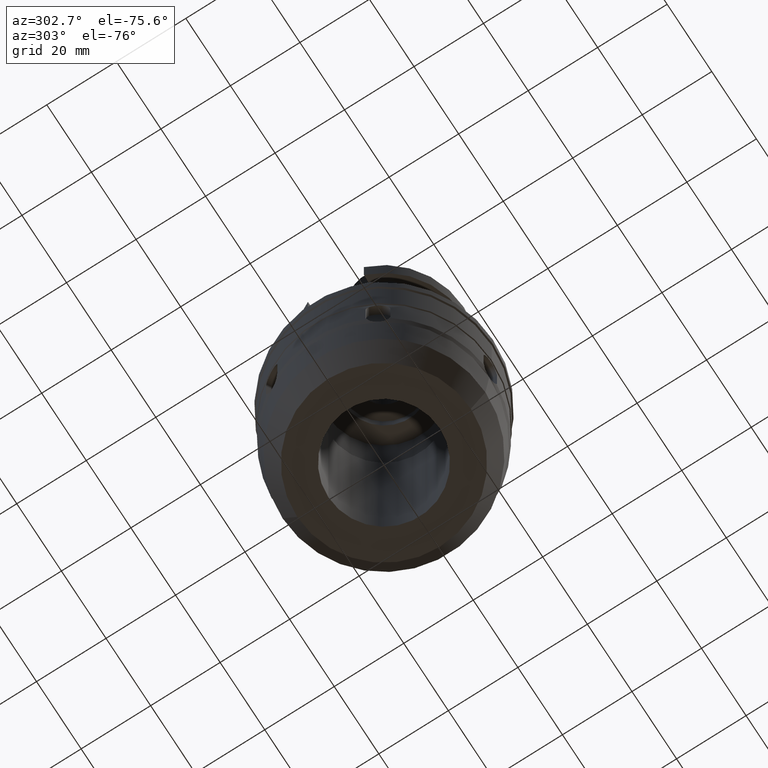
[diagram: clean part render]
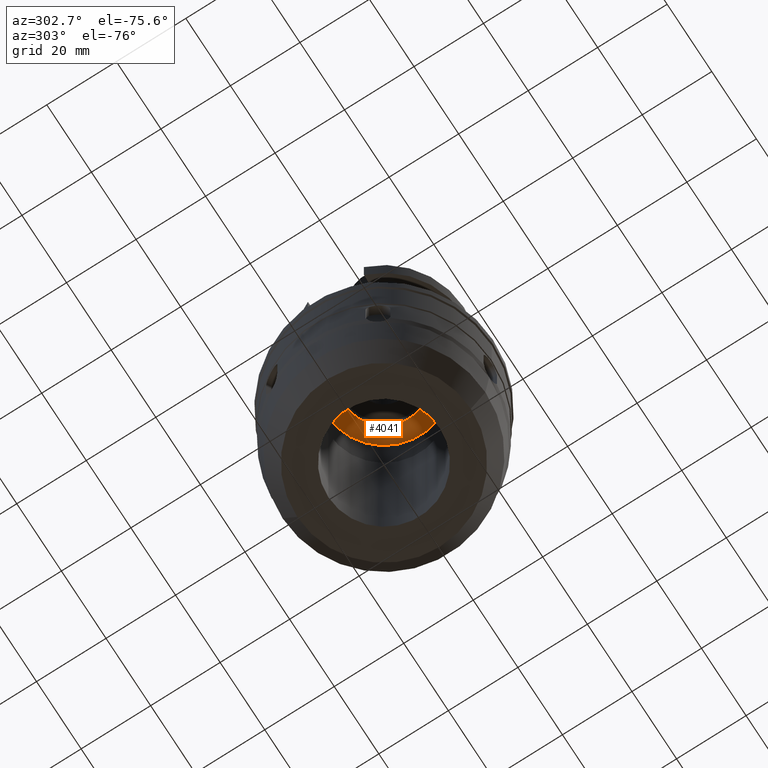
[diagram: same view with one face highlighted and labeled with its STEP entity id]
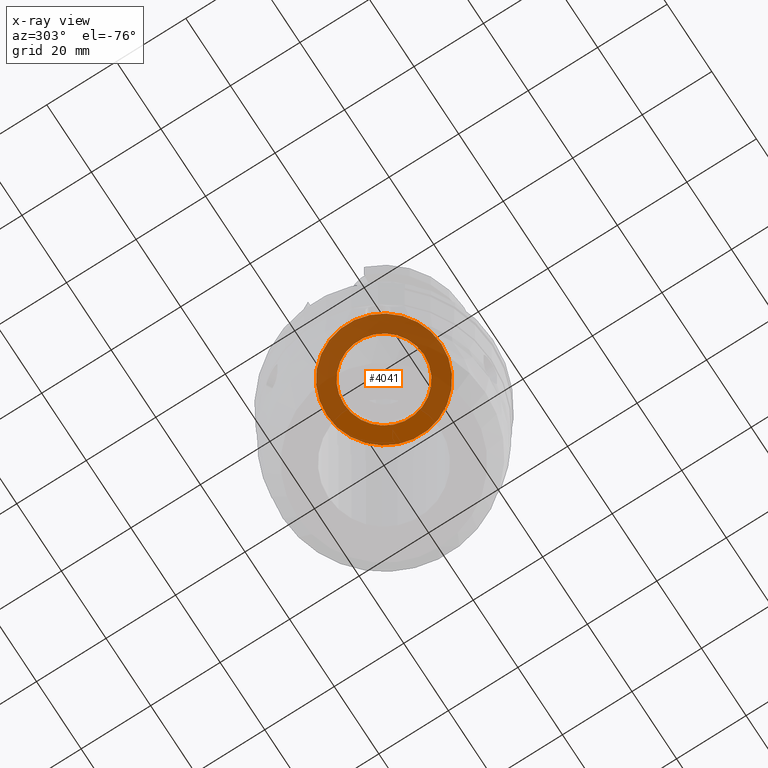
[diagram: x-ray of the same camera — body ghosted, the highlighted face saturated]
A machine part, auxiliary view. The second image highlights one B-rep face of the part: STEP entity #4041.
The next image is the same camera in x-ray: the body ghosted, the highlighted face saturated — about 72% of this face is hidden behind the body in this view.
In plain terms, the highlighted planar face has unit normal (0, 0, -1).
Its self-contained STEP definition (entity closure, byte-faithful):
#2003=CARTESIAN_POINT('',(0.E0,1.911306259429E-14,-2.4E1));
#2004=DIRECTION('',(0.E0,0.E0,1.E0));
#2005=DIRECTION('',(0.E0,-1.E0,0.E0));
#2006=AXIS2_PLACEMENT_3D('',#2003,#2004,#2005);
#2011=CARTESIAN_POINT('',(0.E0,1.911306259429E-14,-2.4E1));
#2012=DIRECTION('',(0.E0,0.E0,1.E0));
#2013=DIRECTION('',(0.E0,1.E0,0.E0));
#2014=AXIS2_PLACEMENT_3D('',#2011,#2012,#2013);
#2019=CARTESIAN_POINT('',(0.E0,1.911306259429E-14,-2.4E1));
#2020=DIRECTION('',(0.E0,0.E0,-1.E0));
#2021=DIRECTION('',(0.E0,-1.E0,0.E0));
#2022=AXIS2_PLACEMENT_3D('',#2019,#2020,#2021);
#2027=CARTESIAN_POINT('',(0.E0,1.911306259429E-14,-2.4E1));
#2028=DIRECTION('',(0.E0,0.E0,-1.E0));
#2029=DIRECTION('',(0.E0,1.E0,0.E0));
#2030=AXIS2_PLACEMENT_3D('',#2027,#2028,#2029);
#2333=CARTESIAN_POINT('',(0.E0,1.15E1,-2.4E1));
#2334=VERTEX_POINT('',#2333);
#2335=CARTESIAN_POINT('',(0.E0,-1.15E1,-2.4E1));
#2336=VERTEX_POINT('',#2335);
#2337=CARTESIAN_POINT('',(0.E0,-1.65E1,-2.4E1));
#2338=CARTESIAN_POINT('',(0.E0,1.65E1,-2.4E1));
#2339=VERTEX_POINT('',#2337);
#2340=VERTEX_POINT('',#2338);
#4026=CARTESIAN_POINT('',(0.E0,0.E0,-2.4E1));
#4027=DIRECTION('',(0.E0,0.E0,-1.E0));
#4028=DIRECTION('',(0.E0,-1.E0,0.E0));
#4029=AXIS2_PLACEMENT_3D('',#4026,#4027,#4028);
#4030=PLANE('',#4029);
#4031=ORIENTED_EDGE('',*,*,#4019,.T.);
#4032=ORIENTED_EDGE('',*,*,#4008,.T.);
#4033=EDGE_LOOP('',(#4031,#4032));
#4034=FACE_OUTER_BOUND('',#4033,.F.);
#4036=ORIENTED_EDGE('',*,*,#4035,.T.);
#4038=ORIENTED_EDGE('',*,*,#4037,.T.);
#4039=EDGE_LOOP('',(#4036,#4038));
#4040=FACE_BOUND('',#4039,.F.);
#2007=CIRCLE('',#2006,1.65E1);
#2015=CIRCLE('',#2014,1.65E1);
#2023=CIRCLE('',#2022,1.15E1);
#2031=CIRCLE('',#2030,1.15E1);
#4008=EDGE_CURVE('',#2340,#2339,#2015,.T.);
#4019=EDGE_CURVE('',#2339,#2340,#2007,.T.);
#4035=EDGE_CURVE('',#2336,#2334,#2023,.T.);
#4037=EDGE_CURVE('',#2334,#2336,#2031,.T.);
#4041=ADVANCED_FACE('',(#4034,#4040),#4030,.T.);